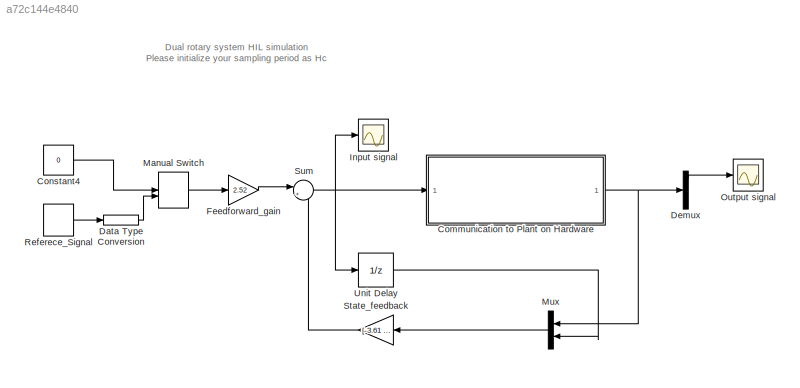
MODEL slx_a72c144e4840
KIND model
CONFIG AbsTol = auto
CONFIG EnableMultiTasking = off
CONFIG FixedStep = Hc
CONFIG MaxStep = auto
CONFIG MinStep = auto
CONFIG RelTol = 1e-3
CONFIG SampleTimeConstraint = Unconstrained
CONFIG Solver = FixedStepAuto
CONFIG SolverName = FixedStepAuto
CONFIG StartTime = 0.0
CONFIG StopTime = inf
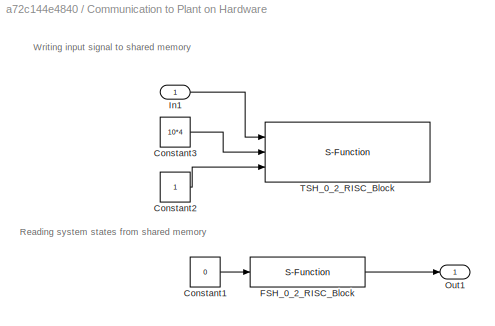
BLOCK [SubSystem] Communication to Plant on Hardware
  Ports = [1, 1]
  RequestExecContextInheritance = off
BLOCK [Constant] Communication to Plant on Hardware/Constant1
  OutDataTypeStr = int32
  SampleTime = Hc
  Value = 0
BLOCK [Constant] Communication to Plant on Hardware/Constant2
  OutDataTypeStr = int32
  SampleTime = Hc
BLOCK [Constant] Communication to Plant on Hardware/Constant3
  OutDataTypeStr = uint32
  SampleTime = Hc
  Value = 10*4
BLOCK [S-Function] Communication to Plant on Hardware/FSH_0_2_RISC_Block
  EnableBusSupport = off
  FunctionName = FSH_0_2_RISC_Block
  Parameters = SParameter1
  Ports = [1, 1]
  SFcnIsStateOwnerBlock = off
  SFunctionDeploymentMode = off
BLOCK [Inport] Communication to Plant on Hardware/In1
  IconDisplay = Port number
BLOCK [Outport] Communication to Plant on Hardware/Out1
  IconDisplay = Port number
BLOCK [S-Function] Communication to Plant on Hardware/TSH_0_2_RISC_Block
  EnableBusSupport = off
  FunctionName = TSH_0_2_RISC_Block
  Ports = [3]
  SFcnIsStateOwnerBlock = off
  SFunctionDeploymentMode = off
BLOCK [Constant] Constant4
  OutDataTypeStr = single
  SampleTime = Hc
  Value = 0
BLOCK [DataTypeConversion] Data Type Conversion
  OutDataTypeStr = single
  RndMeth = Floor
  SaturateOnIntegerOverflow = off
BLOCK [Demux] Demux
  DisplayOption = bar
  Ports = [1, 4]
BLOCK [Gain] Feedforward_gain
  Gain = 2.52
  OutDataTypeStr = Inherit: Inherit via internal rule
  ParamDataTypeStr = Inherit: Inherit via internal rule
  SaturateOnIntegerOverflow = off
BLOCK [Scope] Input signal
  Floating = off
  NumInputPorts = 1
  Ports = [1]
  ScopeSpecificationString = Simulink.scopes.TimeScopeBlockCfg('CurrentConfiguration', extmgr.ConfigurationSet(extmgr.Configuration('Core','General UI',true),extmgr.Configuration('Core','Source UI',true),extmgr.Configuration('Sources','WiredSimulink',true,'DataLoggingVariableName','ScopeData1'),extmgr.Configuration('Visuals','Time Domain',true,'SerializedDisplays',{struct('MinYLimReal','-3.15001','MaxYLimReal','3.15','YLabelR...<+1410ch>
BLOCK [ManualSwitch] Manual Switch
  CurrentSetting = 0
BLOCK [Mux] Mux
  DisplayOption = bar
  Inputs = 2
  Ports = [2, 1]
BLOCK [Scope] Output signal
  Floating = off
  NumInputPorts = 1
  Ports = [1]
  ScopeSpecificationString = Simulink.scopes.TimeScopeBlockCfg('CurrentConfiguration', extmgr.ConfigurationSet(extmgr.Configuration('Core','General UI',true),extmgr.Configuration('Core','Source UI',true),extmgr.Configuration('Sources','WiredSimulink',true),extmgr.Configuration('Visuals','Time Domain',true,'SerializedDisplays',{struct('MinYLimReal','-0.13723','MaxYLimReal','1.23509','YLabelReal','','MinYLimMag','0.00000','MaxY...<+1428ch>
BLOCK [DiscretePulseGenerator] Referece_Signal
  Period = 5000
  Ports = [0, 1]
  PulseWidth = 2500
  SampleTime = Hc
BLOCK [Gain] State_feedback
  Gain = [-3.61   -1.098  -0.04   0.01  -0.06]
  Multiplication = Matrix(K*u) (u vector)
  OutDataTypeStr = Inherit: Inherit via internal rule
  ParamDataTypeStr = Inherit: Inherit via internal rule
  SaturateOnIntegerOverflow = off
BLOCK [Sum] Sum
  IconShape = round
  InputSameDT = off
  Inputs = |++
  OutDataTypeStr = Inherit: Inherit via internal rule
  Ports = [2, 1]
  SaturateOnIntegerOverflow = off
BLOCK [UnitDelay] Unit Delay
  InputProcessing = Elements as channels (sample based)
  SampleTime = Hc
ANNOTATION (root): Dual rotary system HIL simulation Please initialize your sampling period as Hc
ANNOTATION Communication to Plant on Hardware: Reading system states from shared memory
ANNOTATION Communication to Plant on Hardware: Writing input signal to shared memory
LINE Communication to Plant on Hardware/Constant1:1 -> Communication to Plant on Hardware/FSH_0_2_RISC_Block:1
LINE Communication to Plant on Hardware/Constant2:1 -> Communication to Plant on Hardware/TSH_0_2_RISC_Block:3
LINE Communication to Plant on Hardware/Constant3:1 -> Communication to Plant on Hardware/TSH_0_2_RISC_Block:2
LINE Communication to Plant on Hardware/FSH_0_2_RISC_Block:1 -> Communication to Plant on Hardware/Out1:1
LINE Communication to Plant on Hardware/In1:1 -> Communication to Plant on Hardware/TSH_0_2_RISC_Block:1
NET Communication to Plant on Hardware:1 -> Demux:1, Mux:1
LINE Constant4:1 -> Manual Switch:1
LINE Data Type Conversion:1 -> Manual Switch:2
LINE Demux:1 -> Output signal:1
LINE Feedforward_gain:1 -> Sum:1
LINE Manual Switch:1 -> Feedforward_gain:1
LINE Mux:1 -> State_feedback:1
LINE Referece_Signal:1 -> Data Type Conversion:1
LINE State_feedback:1 -> Sum:2
NET Sum:1 -> Communication to Plant on Hardware:1, Input signal:1, Unit Delay:1
LINE Unit Delay:1 -> Mux:2
note: NET lines group one-source signal fan-out (src -> all destinations, sorted); 1:1 wires keep LINE
